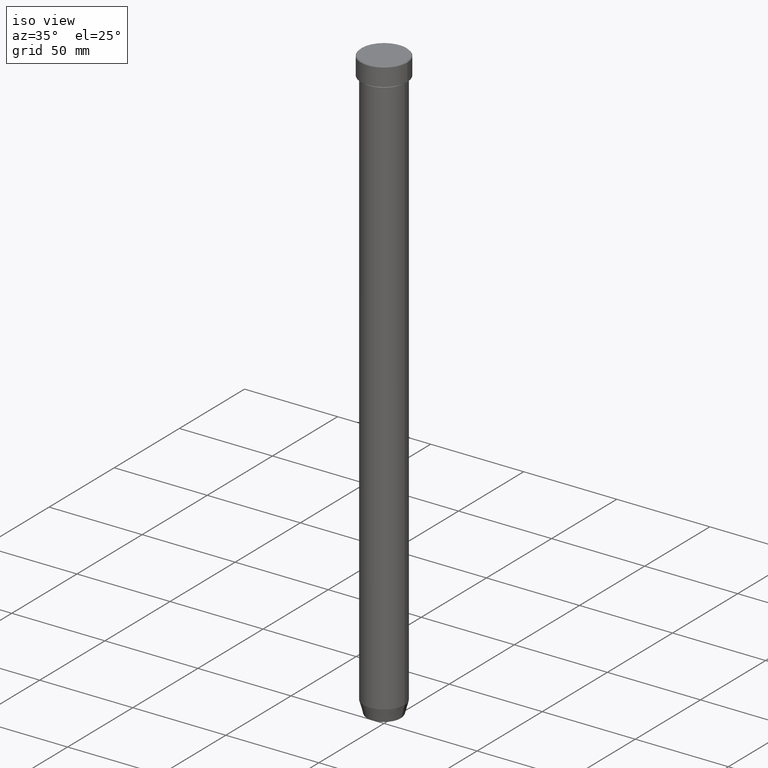
[diagram: clean part render]
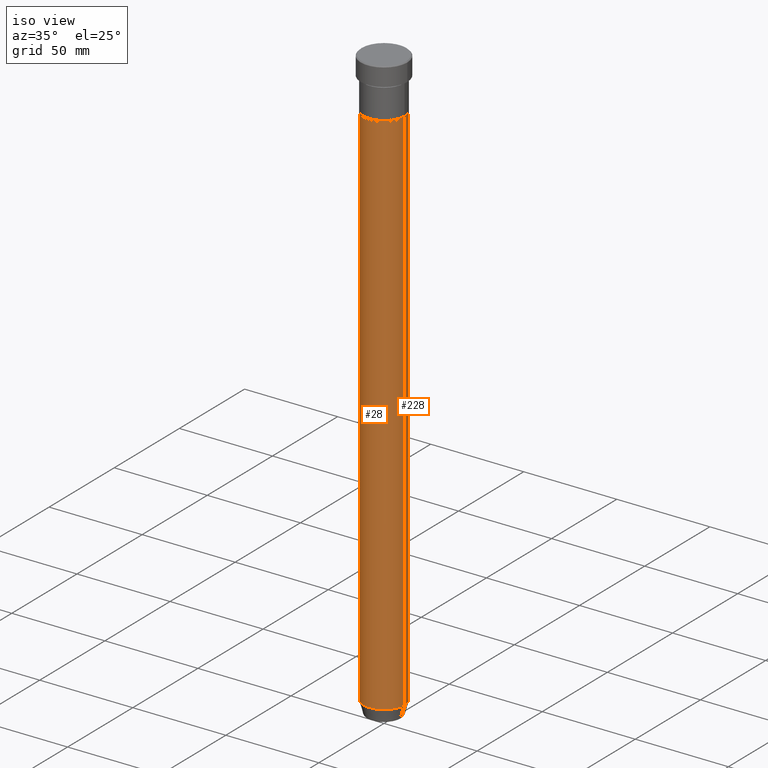
[diagram: same view with one multi-face feature highlighted, each face labeled with its STEP entity id]
A machine part, iso view. The highlighted faces form ONE feature: a constant-radius fillet chain: 2 tangent blend faces with common blend radius 11 mm. The faces share edges in the B-rep.
Their STEP definitions:
[1] entity #28 (Cylinder):
#3 = DIRECTION ( 'NONE',  ( -0.000000000000000000, -0.000000000000000000, 1.000000000000000000 ) ) ;
#8 = LINE ( 'NONE', #351, #479 ) ;
#12 = ORIENTED_EDGE ( 'NONE', *, *, #353, .F. ) ;
#16 = VECTOR ( 'NONE', #3, 1000.000000000000000 ) ;
#28 = ADVANCED_FACE ( 'NONE', ( #259 ), #541, .T. ) ;
#36 = VERTEX_POINT ( 'NONE', #37 ) ;
#37 = CARTESIAN_POINT ( 'NONE',  ( 11.00000000000000000, 0.000000000000000000, -27.00000000000000000 ) ) ;
#39 = AXIS2_PLACEMENT_3D ( 'NONE', #98, #278, #466 ) ;
#59 = VERTEX_POINT ( 'NONE', #347 ) ;
#70 = EDGE_LOOP ( 'NONE', ( #204, #153, #177, #12 ) ) ;
#92 = AXIS2_PLACEMENT_3D ( 'NONE', #356, #134, #313 ) ;
#98 = CARTESIAN_POINT ( 'NONE',  ( 0.000000000000000000, 0.000000000000000000, -313.0000000000000000 ) ) ;
#121 = CARTESIAN_POINT ( 'NONE',  ( -11.00000000000000000, 1.347111479062088405E-15, -27.00000000000000000 ) ) ;
#134 = DIRECTION ( 'NONE',  ( -0.000000000000000000, -0.000000000000000000, 1.000000000000000000 ) ) ;
#144 = CARTESIAN_POINT ( 'NONE',  ( 11.00000000000000000, 0.000000000000000000, -313.0000000000000000 ) ) ;
#153 = ORIENTED_EDGE ( 'NONE', *, *, #527, .T. ) ;
#177 = ORIENTED_EDGE ( 'NONE', *, *, #299, .T. ) ;
#189 = CARTESIAN_POINT ( 'NONE',  ( 11.00000000000000000, 0.000000000000000000, 0.000000000000000000 ) ) ;
#204 = ORIENTED_EDGE ( 'NONE', *, *, #323, .F. ) ;
#259 = FACE_OUTER_BOUND ( 'NONE', #70, .T. ) ;
#263 = CIRCLE ( 'NONE', #39, 11.00000000000000000 ) ;
#278 = DIRECTION ( 'NONE',  ( -0.000000000000000000, -0.000000000000000000, 1.000000000000000000 ) ) ;
#299 = EDGE_CURVE ( 'NONE', #337, #36, #400, .T. ) ;
#313 = DIRECTION ( 'NONE',  ( 1.000000000000000000, 0.000000000000000000, 0.000000000000000000 ) ) ;
#323 = EDGE_CURVE ( 'NONE', #59, #563, #8, .T. ) ;
#337 = VERTEX_POINT ( 'NONE', #144 ) ;
#339 = CIRCLE ( 'NONE', #92, 11.00000000000000000 ) ;
#345 = DIRECTION ( 'NONE',  ( 1.000000000000000000, 0.000000000000000000, 0.000000000000000000 ) ) ;
#347 = CARTESIAN_POINT ( 'NONE',  ( -11.00000000000000000, 1.347111479062088405E-15, -313.0000000000000000 ) ) ;
#351 = CARTESIAN_POINT ( 'NONE',  ( -11.00000000000000000, 1.347111479062088405E-15, 0.000000000000000000 ) ) ;
#353 = EDGE_CURVE ( 'NONE', #563, #36, #339, .T. ) ;
#356 = CARTESIAN_POINT ( 'NONE',  ( 0.000000000000000000, 0.000000000000000000, -27.00000000000000000 ) ) ;
#400 = LINE ( 'NONE', #189, #16 ) ;
#466 = DIRECTION ( 'NONE',  ( 1.000000000000000000, 0.000000000000000000, 0.000000000000000000 ) ) ;
#479 = VECTOR ( 'NONE', #562, 1000.000000000000000 ) ;
#482 = AXIS2_PLACEMENT_3D ( 'NONE', #550, #596, #345 ) ;
#527 = EDGE_CURVE ( 'NONE', #59, #337, #263, .T. ) ;
#541 = CYLINDRICAL_SURFACE ( 'NONE', #482, 11.00000000000000000 ) ;
#550 = CARTESIAN_POINT ( 'NONE',  ( 0.000000000000000000, 0.000000000000000000, 0.000000000000000000 ) ) ;
#562 = DIRECTION ( 'NONE',  ( -0.000000000000000000, -0.000000000000000000, 1.000000000000000000 ) ) ;
#563 = VERTEX_POINT ( 'NONE', #121 ) ;
#596 = DIRECTION ( 'NONE',  ( -0.000000000000000000, -0.000000000000000000, 1.000000000000000000 ) ) ;
[2] entity #228 (Cylinder):
#3 = DIRECTION ( 'NONE',  ( -0.000000000000000000, -0.000000000000000000, 1.000000000000000000 ) ) ;
#8 = LINE ( 'NONE', #351, #479 ) ;
#16 = VECTOR ( 'NONE', #3, 1000.000000000000000 ) ;
#24 = CARTESIAN_POINT ( 'NONE',  ( 0.000000000000000000, 0.000000000000000000, -313.0000000000000000 ) ) ;
#36 = VERTEX_POINT ( 'NONE', #37 ) ;
#37 = CARTESIAN_POINT ( 'NONE',  ( 11.00000000000000000, 0.000000000000000000, -27.00000000000000000 ) ) ;
#59 = VERTEX_POINT ( 'NONE', #347 ) ;
#61 = DIRECTION ( 'NONE',  ( -0.000000000000000000, -0.000000000000000000, 1.000000000000000000 ) ) ;
#80 = DIRECTION ( 'NONE',  ( 1.000000000000000000, 0.000000000000000000, 0.000000000000000000 ) ) ;
#119 = DIRECTION ( 'NONE',  ( -0.000000000000000000, -0.000000000000000000, 1.000000000000000000 ) ) ;
#121 = CARTESIAN_POINT ( 'NONE',  ( -11.00000000000000000, 1.347111479062088405E-15, -27.00000000000000000 ) ) ;
#144 = CARTESIAN_POINT ( 'NONE',  ( 11.00000000000000000, 0.000000000000000000, -313.0000000000000000 ) ) ;
#167 = AXIS2_PLACEMENT_3D ( 'NONE', #473, #119, #80 ) ;
#189 = CARTESIAN_POINT ( 'NONE',  ( 11.00000000000000000, 0.000000000000000000, 0.000000000000000000 ) ) ;
#228 = ADVANCED_FACE ( 'NONE', ( #294 ), #284, .T. ) ;
#246 = CARTESIAN_POINT ( 'NONE',  ( 0.000000000000000000, 0.000000000000000000, -27.00000000000000000 ) ) ;
#248 = ORIENTED_EDGE ( 'NONE', *, *, #380, .F. ) ;
#280 = AXIS2_PLACEMENT_3D ( 'NONE', #246, #61, #372 ) ;
#284 = CYLINDRICAL_SURFACE ( 'NONE', #167, 11.00000000000000000 ) ;
#294 = FACE_OUTER_BOUND ( 'NONE', #315, .T. ) ;
#299 = EDGE_CURVE ( 'NONE', #337, #36, #400, .T. ) ;
#315 = EDGE_LOOP ( 'NONE', ( #577, #530, #248, #374 ) ) ;
#322 = AXIS2_PLACEMENT_3D ( 'NONE', #24, #478, #472 ) ;
#323 = EDGE_CURVE ( 'NONE', #59, #563, #8, .T. ) ;
#337 = VERTEX_POINT ( 'NONE', #144 ) ;
#347 = CARTESIAN_POINT ( 'NONE',  ( -11.00000000000000000, 1.347111479062088405E-15, -313.0000000000000000 ) ) ;
#351 = CARTESIAN_POINT ( 'NONE',  ( -11.00000000000000000, 1.347111479062088405E-15, 0.000000000000000000 ) ) ;
#372 = DIRECTION ( 'NONE',  ( 1.000000000000000000, 0.000000000000000000, 0.000000000000000000 ) ) ;
#374 = ORIENTED_EDGE ( 'NONE', *, *, #299, .F. ) ;
#380 = EDGE_CURVE ( 'NONE', #36, #563, #542, .T. ) ;
#400 = LINE ( 'NONE', #189, #16 ) ;
#472 = DIRECTION ( 'NONE',  ( 1.000000000000000000, 0.000000000000000000, 0.000000000000000000 ) ) ;
#473 = CARTESIAN_POINT ( 'NONE',  ( 0.000000000000000000, 0.000000000000000000, 0.000000000000000000 ) ) ;
#477 = EDGE_CURVE ( 'NONE', #337, #59, #524, .T. ) ;
#478 = DIRECTION ( 'NONE',  ( -0.000000000000000000, -0.000000000000000000, 1.000000000000000000 ) ) ;
#479 = VECTOR ( 'NONE', #562, 1000.000000000000000 ) ;
#524 = CIRCLE ( 'NONE', #322, 11.00000000000000000 ) ;
#530 = ORIENTED_EDGE ( 'NONE', *, *, #323, .T. ) ;
#542 = CIRCLE ( 'NONE', #280, 11.00000000000000000 ) ;
#562 = DIRECTION ( 'NONE',  ( -0.000000000000000000, -0.000000000000000000, 1.000000000000000000 ) ) ;
#563 = VERTEX_POINT ( 'NONE', #121 ) ;
#577 = ORIENTED_EDGE ( 'NONE', *, *, #477, .T. ) ;